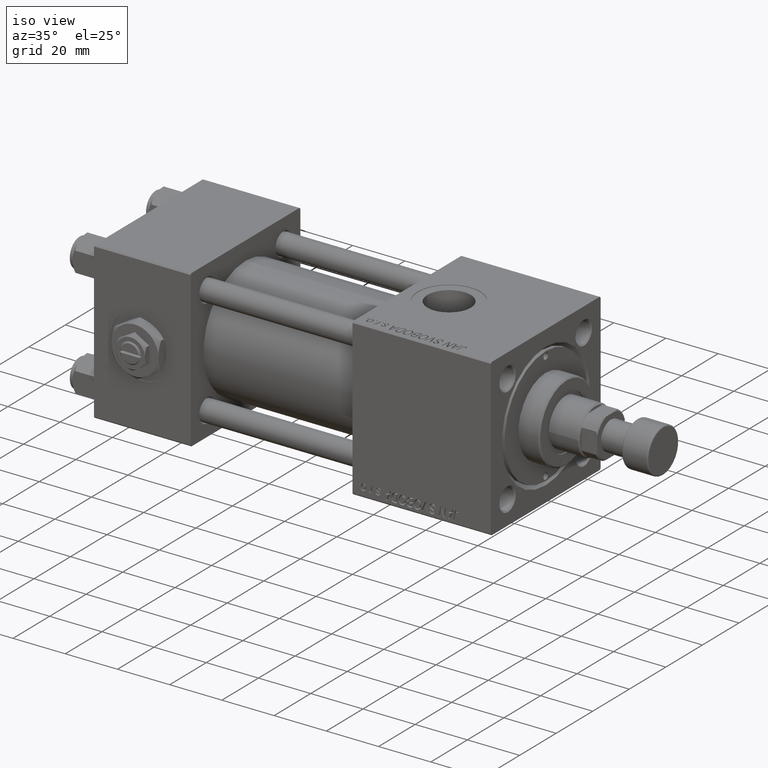
[diagram: clean part render]
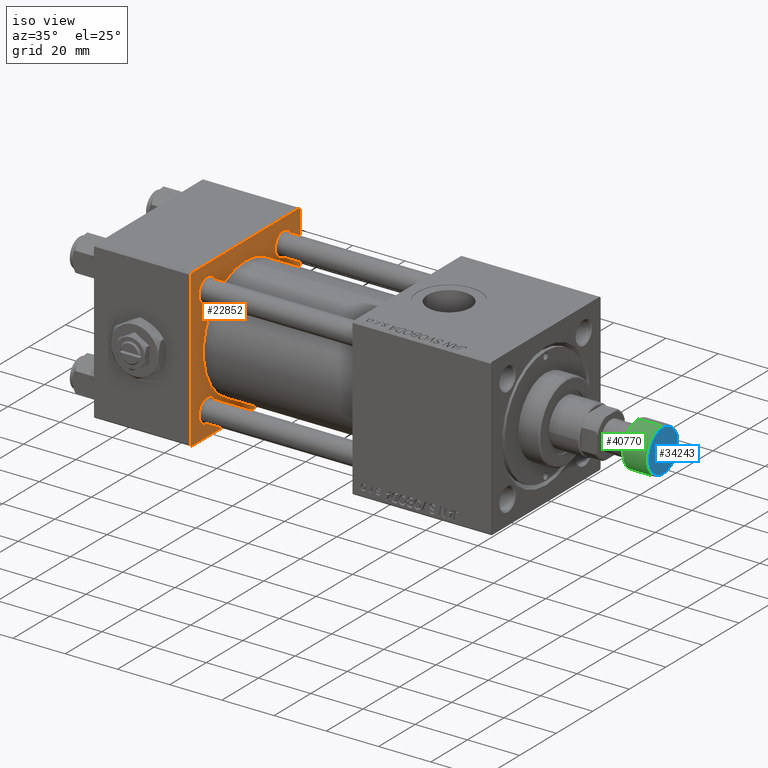
[diagram: same view with three faces highlighted in distinct colors, each labeled with its STEP entity id]
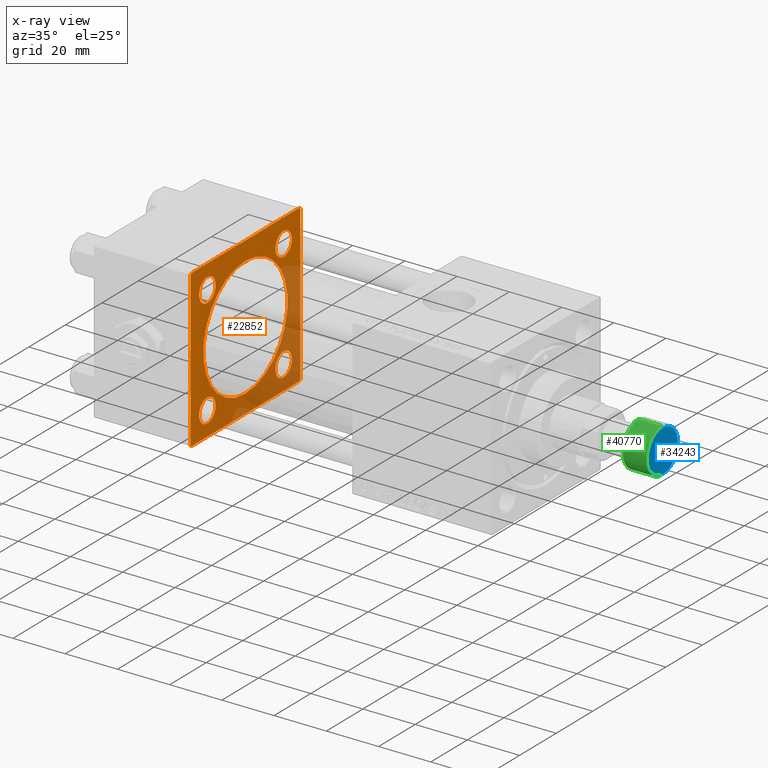
[diagram: x-ray of the same camera — body ghosted, the three highlighted faces saturated]
A machine part, iso view with three faces highlighted in distinct colors.
The next image is the same camera in x-ray (body ghosted, the three faces saturated) — at least one of them is partly hidden behind the body in this view.
Their STEP definitions:

[orange] entity #22852 — the highlighted planar face has unit normal (-1, 0, 0).
#167 = CARTESIAN_POINT ( 'NONE',  ( 37.00000000000000000, 29.99999999999999289, 30.00000000000000000 ) ) ;
#735 = EDGE_CURVE ( 'NONE', #15502, #36636, #19010, .T. ) ;
#1019 = DIRECTION ( 'NONE',  ( 0.000000000000000000, 0.000000000000000000, 1.000000000000000000 ) ) ;
#1096 = EDGE_CURVE ( 'NONE', #36103, #12233, #24928, .T. ) ;
#1233 = CARTESIAN_POINT ( 'NONE',  ( 37.00000000000000000, 20.84999999999999787, -25.35000000000001918 ) ) ;
#2054 = ORIENTED_EDGE ( 'NONE', *, *, #17063, .T. ) ;
#2087 = VECTOR ( 'NONE', #15923, 1000.000000000000000 ) ;
#2222 = DIRECTION ( 'NONE',  ( -0.000000000000000000, 0.000000000000000000, 1.000000000000000000 ) ) ;
#2269 = CARTESIAN_POINT ( 'NONE',  ( 37.00000000000000000, 2.146024240737016609E-16, -23.00000000000000000 ) ) ;
#2558 = DIRECTION ( 'NONE',  ( 0.000000000000000000, 0.000000000000000000, -1.000000000000000000 ) ) ;
#3028 = EDGE_LOOP ( 'NONE', ( #25129, #14555 ) ) ;
#3074 = AXIS2_PLACEMENT_3D ( 'NONE', #17538, #50107, #50901 ) ;
#3397 = ORIENTED_EDGE ( 'NONE', *, *, #24972, .T. ) ;
#3806 = EDGE_CURVE ( 'NONE', #12019, #48899, #44495, .T. ) ;
#4803 = AXIS2_PLACEMENT_3D ( 'NONE', #19771, #52356, #8043 ) ;
#4849 = EDGE_LOOP ( 'NONE', ( #25194, #44845 ) ) ;
#4913 = CARTESIAN_POINT ( 'NONE',  ( 37.00000000000000000, 20.84999999999999787, 20.85000000000000142 ) ) ;
#5310 = VERTEX_POINT ( 'NONE', #42239 ) ;
#5670 = FACE_OUTER_BOUND ( 'NONE', #41220, .T. ) ;
#5794 = AXIS2_PLACEMENT_3D ( 'NONE', #37574, #16243, #1019 ) ;
#5958 = VERTEX_POINT ( 'NONE', #17013 ) ;
#6326 = LINE ( 'NONE', #51436, #47352 ) ;
#6495 = CIRCLE ( 'NONE', #3074, 4.500000000000017764 ) ;
#7336 = CARTESIAN_POINT ( 'NONE',  ( 37.00000000000000000, -2.602085213965210642E-15, 0.000000000000000000 ) ) ;
#7900 = DIRECTION ( 'NONE',  ( -1.000000000000000000, 0.000000000000000000, -0.000000000000000000 ) ) ;
#8043 = DIRECTION ( 'NONE',  ( 0.000000000000000000, 0.000000000000000000, 1.000000000000000000 ) ) ;
#8491 = DIRECTION ( 'NONE',  ( -1.000000000000000000, 0.000000000000000000, -0.000000000000000000 ) ) ;
#8916 = DIRECTION ( 'NONE',  ( 0.000000000000000000, -1.000000000000000000, -1.156482317317871725E-16 ) ) ;
#9175 = EDGE_LOOP ( 'NONE', ( #31603, #23822 ) ) ;
#9531 = ORIENTED_EDGE ( 'NONE', *, *, #17663, .T. ) ;
#9894 = DIRECTION ( 'NONE',  ( 0.000000000000000000, 0.000000000000000000, 1.000000000000000000 ) ) ;
#10818 = CARTESIAN_POINT ( 'NONE',  ( 37.00000000000000000, -30.00000000000000000, 29.99999999999999289 ) ) ;
#10918 = LINE ( 'NONE', #42980, #51577 ) ;
#11149 = VERTEX_POINT ( 'NONE', #23487 ) ;
#11700 = DIRECTION ( 'NONE',  ( 0.000000000000000000, 0.000000000000000000, 1.000000000000000000 ) ) ;
#11952 = EDGE_CURVE ( 'NONE', #36103, #48899, #10918, .T. ) ;
#11972 = CIRCLE ( 'NONE', #40980, 4.500000000000017764 ) ;
#12019 = VERTEX_POINT ( 'NONE', #29528 ) ;
#12105 = CARTESIAN_POINT ( 'NONE',  ( 37.00000000000000000, -29.49999999999998579, 29.99999999999999289 ) ) ;
#12233 = VERTEX_POINT ( 'NONE', #52459 ) ;
#12810 = CARTESIAN_POINT ( 'NONE',  ( 37.00000000000000000, -30.00000000000000000, -29.50000000000001776 ) ) ;
#13586 = ORIENTED_EDGE ( 'NONE', *, *, #1096, .F. ) ;
#13692 = FACE_BOUND ( 'NONE', #29141, .T. ) ;
#13902 = CARTESIAN_POINT ( 'NONE',  ( 37.00000000000000000, -20.84999999999999076, -20.85000000000000497 ) ) ;
#14353 = VERTEX_POINT ( 'NONE', #34346 ) ;
#14482 = DIRECTION ( 'NONE',  ( -1.000000000000000000, 0.000000000000000000, -0.000000000000000000 ) ) ;
#14555 = ORIENTED_EDGE ( 'NONE', *, *, #36466, .T. ) ;
#14608 = DIRECTION ( 'NONE',  ( -0.000000000000000000, -0.7071067811865474617, -0.7071067811865474617 ) ) ;
#14635 = VERTEX_POINT ( 'NONE', #47102 ) ;
#14708 = VERTEX_POINT ( 'NONE', #12810 ) ;
#15067 = CIRCLE ( 'NONE', #4803, 23.00000000000000000 ) ;
#15171 = LINE ( 'NONE', #22908, #36652 ) ;
#15502 = VERTEX_POINT ( 'NONE', #50191 ) ;
#15834 = VECTOR ( 'NONE', #2558, 1000.000000000000000 ) ;
#15923 = DIRECTION ( 'NONE',  ( 0.000000000000000000, 0.000000000000000000, -1.000000000000000000 ) ) ;
#15932 = CARTESIAN_POINT ( 'NONE',  ( 37.00000000000000000, -20.84999999999999076, 20.85000000000000497 ) ) ;
#16243 = DIRECTION ( 'NONE',  ( -1.000000000000000000, 0.000000000000000000, -0.000000000000000000 ) ) ;
#16737 = ORIENTED_EDGE ( 'NONE', *, *, #51978, .T. ) ;
#17013 = CARTESIAN_POINT ( 'NONE',  ( 37.00000000000000000, -20.84999999999999076, 16.34999999999998721 ) ) ;
#17063 = EDGE_CURVE ( 'NONE', #23098, #14708, #51655, .T. ) ;
#17538 = CARTESIAN_POINT ( 'NONE',  ( 37.00000000000000000, 20.84999999999999787, 20.85000000000000142 ) ) ;
#17663 = EDGE_CURVE ( 'NONE', #14353, #11149, #6495, .T. ) ;
#17688 = PLANE ( 'NONE',  #21979 ) ;
#17769 = CARTESIAN_POINT ( 'NONE',  ( 37.00000000000000000, 20.84999999999999787, -20.85000000000000142 ) ) ;
#17954 = FACE_BOUND ( 'NONE', #3028, .T. ) ;
#18040 = VERTEX_POINT ( 'NONE', #2269 ) ;
#19010 = CIRCLE ( 'NONE', #43790, 4.500000000000017764 ) ;
#19349 = EDGE_CURVE ( 'NONE', #18040, #49831, #15067, .T. ) ;
#19573 = CIRCLE ( 'NONE', #45166, 4.500000000000017764 ) ;
#19675 = VECTOR ( 'NONE', #45218, 1000.000000000000114 ) ;
#19771 = CARTESIAN_POINT ( 'NONE',  ( 37.00000000000000000, -2.602085213965210642E-15, 0.000000000000000000 ) ) ;
#20619 = CARTESIAN_POINT ( 'NONE',  ( 37.00000000000000000, -29.50000000000001066, -30.00000000000000711 ) ) ;
#21244 = ORIENTED_EDGE ( 'NONE', *, *, #3806, .F. ) ;
#21762 = DIRECTION ( 'NONE',  ( 0.000000000000000000, 0.000000000000000000, 1.000000000000000000 ) ) ;
#21910 = VERTEX_POINT ( 'NONE', #12105 ) ;
#21946 = CARTESIAN_POINT ( 'NONE',  ( 37.00000000000000000, 0.000000000000000000, 0.000000000000000000 ) ) ;
#21979 = AXIS2_PLACEMENT_3D ( 'NONE', #21946, #14482, #2222 ) ;
#22112 = DIRECTION ( 'NONE',  ( 0.000000000000000000, -1.000000000000000000, -1.156482317317871725E-16 ) ) ;
#22852 = ADVANCED_FACE ( 'NONE', ( #46274, #26232, #17954, #13692, #51317, #5670 ), #17688, .F. ) ;
#22908 = CARTESIAN_POINT ( 'NONE',  ( 37.00000000000000000, 29.99999999999999289, 30.00000000000000000 ) ) ;
#23098 = VERTEX_POINT ( 'NONE', #41407 ) ;
#23487 = CARTESIAN_POINT ( 'NONE',  ( 37.00000000000000000, 20.84999999999999787, 25.35000000000001918 ) ) ;
#23763 = EDGE_CURVE ( 'NONE', #36636, #15502, #51003, .T. ) ;
#23822 = ORIENTED_EDGE ( 'NONE', *, *, #19349, .F. ) ;
#24004 = CARTESIAN_POINT ( 'NONE',  ( 37.00000000000000000, 29.49999999999997868, -30.00000000000000000 ) ) ;
#24170 = CARTESIAN_POINT ( 'NONE',  ( 37.00000000000000000, -20.84999999999999076, -20.85000000000000497 ) ) ;
#24928 = LINE ( 'NONE', #41223, #40376 ) ;
#24972 = EDGE_CURVE ( 'NONE', #12019, #44985, #36789, .T. ) ;
#25129 = ORIENTED_EDGE ( 'NONE', *, *, #41468, .T. ) ;
#25194 = ORIENTED_EDGE ( 'NONE', *, *, #23763, .T. ) ;
#25268 = AXIS2_PLACEMENT_3D ( 'NONE', #15932, #48236, #49014 ) ;
#26232 = FACE_BOUND ( 'NONE', #4849, .T. ) ;
#26959 = EDGE_CURVE ( 'NONE', #14635, #40766, #35797, .T. ) ;
#26996 = CIRCLE ( 'NONE', #25268, 4.500000000000017764 ) ;
#29141 = EDGE_LOOP ( 'NONE', ( #9531, #43982 ) ) ;
#29522 = ORIENTED_EDGE ( 'NONE', *, *, #11952, .T. ) ;
#29528 = CARTESIAN_POINT ( 'NONE',  ( 37.00000000000000000, 29.99999999999999289, 29.50000000000000000 ) ) ;
#30177 = DIRECTION ( 'NONE',  ( -1.000000000000000000, 0.000000000000000000, -0.000000000000000000 ) ) ;
#31460 = VECTOR ( 'NONE', #38048, 1000.000000000000114 ) ;
#31603 = ORIENTED_EDGE ( 'NONE', *, *, #35684, .F. ) ;
#32134 = EDGE_CURVE ( 'NONE', #11149, #14353, #11972, .T. ) ;
#32512 = CARTESIAN_POINT ( 'NONE',  ( 37.00000000000000000, 20.84999999999999787, -20.85000000000000142 ) ) ;
#33243 = AXIS2_PLACEMENT_3D ( 'NONE', #13902, #30177, #9894 ) ;
#33482 = DIRECTION ( 'NONE',  ( -1.000000000000000000, 0.000000000000000000, -0.000000000000000000 ) ) ;
#33678 = ORIENTED_EDGE ( 'NONE', *, *, #47821, .T. ) ;
#33978 = LINE ( 'NONE', #20619, #19675 ) ;
#34346 = CARTESIAN_POINT ( 'NONE',  ( 37.00000000000000000, 20.84999999999999787, 16.34999999999998366 ) ) ;
#34419 = DIRECTION ( 'NONE',  ( -0.000000000000000000, 0.7071067811865574537, 0.7071067811865376918 ) ) ;
#35274 = EDGE_CURVE ( 'NONE', #21910, #23098, #6326, .T. ) ;
#35684 = EDGE_CURVE ( 'NONE', #49831, #18040, #52521, .T. ) ;
#35797 = CIRCLE ( 'NONE', #33243, 4.500000000000017764 ) ;
#36103 = VERTEX_POINT ( 'NONE', #24004 ) ;
#36139 = DIRECTION ( 'NONE',  ( 0.000000000000000000, 0.000000000000000000, 1.000000000000000000 ) ) ;
#36466 = EDGE_CURVE ( 'NONE', #5310, #5958, #26996, .T. ) ;
#36636 = VERTEX_POINT ( 'NONE', #1233 ) ;
#36652 = VECTOR ( 'NONE', #22112, 1000.000000000000000 ) ;
#36789 = LINE ( 'NONE', #46067, #31460 ) ;
#37348 = AXIS2_PLACEMENT_3D ( 'NONE', #32512, #8491, #11700 ) ;
#37574 = CARTESIAN_POINT ( 'NONE',  ( 37.00000000000000000, -20.84999999999999076, 20.85000000000000497 ) ) ;
#37748 = DIRECTION ( 'NONE',  ( 0.000000000000000000, 0.000000000000000000, 1.000000000000000000 ) ) ;
#38048 = DIRECTION ( 'NONE',  ( 0.000000000000000000, -0.7071067811865474617, 0.7071067811865474617 ) ) ;
#40376 = VECTOR ( 'NONE', #8916, 1000.000000000000000 ) ;
#40726 = DIRECTION ( 'NONE',  ( 0.000000000000000000, 0.000000000000000000, 1.000000000000000000 ) ) ;
#40766 = VERTEX_POINT ( 'NONE', #43358 ) ;
#40980 = AXIS2_PLACEMENT_3D ( 'NONE', #4913, #33482, #37748 ) ;
#41038 = EDGE_LOOP ( 'NONE', ( #42073, #41230 ) ) ;
#41220 = EDGE_LOOP ( 'NONE', ( #13586, #29522, #21244, #3397, #33678, #41443, #2054, #16737 ) ) ;
#41223 = CARTESIAN_POINT ( 'NONE',  ( 37.00000000000000000, 29.99999999999999289, -30.00000000000000000 ) ) ;
#41230 = ORIENTED_EDGE ( 'NONE', *, *, #48132, .T. ) ;
#41407 = CARTESIAN_POINT ( 'NONE',  ( 37.00000000000000000, -30.00000000000000000, 29.49999999999999289 ) ) ;
#41443 = ORIENTED_EDGE ( 'NONE', *, *, #35274, .T. ) ;
#41468 = EDGE_CURVE ( 'NONE', #5958, #5310, #51840, .T. ) ;
#42073 = ORIENTED_EDGE ( 'NONE', *, *, #26959, .T. ) ;
#42239 = CARTESIAN_POINT ( 'NONE',  ( 37.00000000000000000, -20.84999999999999076, 25.35000000000002274 ) ) ;
#42654 = CARTESIAN_POINT ( 'NONE',  ( 37.00000000000000000, 29.99999999999999289, -29.50000000000000000 ) ) ;
#42980 = CARTESIAN_POINT ( 'NONE',  ( 37.00000000000000000, 29.99999999999999289, -29.50000000000000000 ) ) ;
#43358 = CARTESIAN_POINT ( 'NONE',  ( 37.00000000000000000, -20.84999999999999076, -16.34999999999998721 ) ) ;
#43790 = AXIS2_PLACEMENT_3D ( 'NONE', #17769, #49556, #21762 ) ;
#43982 = ORIENTED_EDGE ( 'NONE', *, *, #32134, .T. ) ;
#44495 = LINE ( 'NONE', #167, #2087 ) ;
#44845 = ORIENTED_EDGE ( 'NONE', *, *, #735, .T. ) ;
#44985 = VERTEX_POINT ( 'NONE', #45163 ) ;
#45163 = CARTESIAN_POINT ( 'NONE',  ( 37.00000000000000000, 29.49999999999999289, 30.00000000000000000 ) ) ;
#45166 = AXIS2_PLACEMENT_3D ( 'NONE', #24170, #7900, #40726 ) ;
#45218 = DIRECTION ( 'NONE',  ( 0.000000000000000000, 0.7071067811865474617, -0.7071067811865474617 ) ) ;
#46067 = CARTESIAN_POINT ( 'NONE',  ( 37.00000000000000000, 29.49999999999999289, 30.00000000000000000 ) ) ;
#46274 = FACE_BOUND ( 'NONE', #41038, .T. ) ;
#47102 = CARTESIAN_POINT ( 'NONE',  ( 37.00000000000000000, -20.84999999999999076, -25.35000000000002274 ) ) ;
#47352 = VECTOR ( 'NONE', #14608, 1000.000000000000114 ) ;
#47821 = EDGE_CURVE ( 'NONE', #44985, #21910, #15171, .T. ) ;
#48132 = EDGE_CURVE ( 'NONE', #40766, #14635, #19573, .T. ) ;
#48167 = DIRECTION ( 'NONE',  ( 1.000000000000000000, -0.000000000000000000, 0.000000000000000000 ) ) ;
#48236 = DIRECTION ( 'NONE',  ( -1.000000000000000000, 0.000000000000000000, -0.000000000000000000 ) ) ;
#48899 = VERTEX_POINT ( 'NONE', #42654 ) ;
#49014 = DIRECTION ( 'NONE',  ( 0.000000000000000000, 0.000000000000000000, 1.000000000000000000 ) ) ;
#49556 = DIRECTION ( 'NONE',  ( -1.000000000000000000, 0.000000000000000000, -0.000000000000000000 ) ) ;
#49609 = CARTESIAN_POINT ( 'NONE',  ( 37.00000000000000000, -2.602085213965210642E-15, 23.00000000000000000 ) ) ;
#49831 = VERTEX_POINT ( 'NONE', #49609 ) ;
#50107 = DIRECTION ( 'NONE',  ( -1.000000000000000000, 0.000000000000000000, -0.000000000000000000 ) ) ;
#50191 = CARTESIAN_POINT ( 'NONE',  ( 37.00000000000000000, 20.84999999999999787, -16.34999999999998366 ) ) ;
#50800 = AXIS2_PLACEMENT_3D ( 'NONE', #7336, #48167, #36139 ) ;
#50901 = DIRECTION ( 'NONE',  ( 0.000000000000000000, 0.000000000000000000, 1.000000000000000000 ) ) ;
#51003 = CIRCLE ( 'NONE', #37348, 4.500000000000017764 ) ;
#51317 = FACE_BOUND ( 'NONE', #9175, .T. ) ;
#51436 = CARTESIAN_POINT ( 'NONE',  ( 37.00000000000000000, -30.00000000000000000, 29.49999999999999289 ) ) ;
#51577 = VECTOR ( 'NONE', #34419, 999.9999999999998863 ) ;
#51655 = LINE ( 'NONE', #10818, #15834 ) ;
#51840 = CIRCLE ( 'NONE', #5794, 4.500000000000017764 ) ;
#51978 = EDGE_CURVE ( 'NONE', #14708, #12233, #33978, .T. ) ;
#52356 = DIRECTION ( 'NONE',  ( 1.000000000000000000, -0.000000000000000000, 0.000000000000000000 ) ) ;
#52459 = CARTESIAN_POINT ( 'NONE',  ( 37.00000000000000000, -29.50000000000000000, -30.00000000000000711 ) ) ;
#52521 = CIRCLE ( 'NONE', #50800, 23.00000000000000000 ) ;

[blue] entity #34243 — the highlighted planar face has unit normal (1, 0, 0).
#952 = DIRECTION ( 'NONE',  ( 1.000000000000000000, 0.000000000000000000, 0.000000000000000000 ) ) ;
#7114 = PLANE ( 'NONE',  #24277 ) ;
#7360 = ORIENTED_EDGE ( 'NONE', *, *, #8202, .T. ) ;
#8202 = EDGE_CURVE ( 'NONE', #49169, #21682, #13076, .T. ) ;
#11374 = CARTESIAN_POINT ( 'NONE',  ( 0.000000000000000000, 0.000000000000000000, 0.000000000000000000 ) ) ;
#13076 = CIRCLE ( 'NONE', #15654, 8.000000000000000000 ) ;
#15654 = AXIS2_PLACEMENT_3D ( 'NONE', #30281, #37766, #952 ) ;
#16546 = EDGE_LOOP ( 'NONE', ( #28290, #7360 ) ) ;
#21682 = VERTEX_POINT ( 'NONE', #38573 ) ;
#23383 = DIRECTION ( 'NONE',  ( 1.000000000000000000, 0.000000000000000000, -0.000000000000000000 ) ) ;
#24277 = AXIS2_PLACEMENT_3D ( 'NONE', #11374, #27133, #23383 ) ;
#24450 = DIRECTION ( 'NONE',  ( 0.000000000000000000, 0.000000000000000000, 1.000000000000000000 ) ) ;
#26457 = AXIS2_PLACEMENT_3D ( 'NONE', #51699, #24450, #43978 ) ;
#27133 = DIRECTION ( 'NONE',  ( 0.000000000000000000, 0.000000000000000000, 1.000000000000000000 ) ) ;
#28290 = ORIENTED_EDGE ( 'NONE', *, *, #31712, .T. ) ;
#30281 = CARTESIAN_POINT ( 'NONE',  ( 0.000000000000000000, 0.000000000000000000, 0.000000000000000000 ) ) ;
#31712 = EDGE_CURVE ( 'NONE', #21682, #49169, #41823, .T. ) ;
#32984 = CARTESIAN_POINT ( 'NONE',  ( -8.000000000000000000, 1.010333609296566550E-15, 0.000000000000000000 ) ) ;
#34243 = ADVANCED_FACE ( 'NONE', ( #51692 ), #7114, .T. ) ;
#37766 = DIRECTION ( 'NONE',  ( 0.000000000000000000, 0.000000000000000000, 1.000000000000000000 ) ) ;
#38573 = CARTESIAN_POINT ( 'NONE',  ( 8.000000000000000000, 0.000000000000000000, 0.000000000000000000 ) ) ;
#41823 = CIRCLE ( 'NONE', #26457, 8.000000000000000000 ) ;
#43978 = DIRECTION ( 'NONE',  ( 1.000000000000000000, 0.000000000000000000, 0.000000000000000000 ) ) ;
#49169 = VERTEX_POINT ( 'NONE', #32984 ) ;
#51692 = FACE_OUTER_BOUND ( 'NONE', #16546, .T. ) ;
#51699 = CARTESIAN_POINT ( 'NONE',  ( 0.000000000000000000, 0.000000000000000000, 0.000000000000000000 ) ) ;

[green] entity #40770 — the highlighted cylindrical surface (edge-blend (fillet) strip) has radius 8.5 mm, axis along (1, 0, 0).
#196 = EDGE_CURVE ( 'NONE', #7950, #43891, #32351, .T. ) ;
#3395 = LINE ( 'NONE', #8182, #52457 ) ;
#6601 = AXIS2_PLACEMENT_3D ( 'NONE', #15221, #12519, #41616 ) ;
#6665 = CARTESIAN_POINT ( 'NONE',  ( 8.500000000000000000, 0.000000000000000000, -0.5000000000000004441 ) ) ;
#7950 = VERTEX_POINT ( 'NONE', #9337 ) ;
#8182 = CARTESIAN_POINT ( 'NONE',  ( 8.500000000000000000, 0.000000000000000000, -10.00000000000000000 ) ) ;
#9337 = CARTESIAN_POINT ( 'NONE',  ( -8.500000000000000000, 1.040949779275250140E-15, -9.500000000000000000 ) ) ;
#9641 = EDGE_LOOP ( 'NONE', ( #44719, #50852, #11693, #49758 ) ) ;
#11693 = ORIENTED_EDGE ( 'NONE', *, *, #16103, .T. ) ;
#12114 = CARTESIAN_POINT ( 'NONE',  ( -8.500000000000000000, 1.040949779275250140E-15, -0.5000000000000004441 ) ) ;
#12519 = DIRECTION ( 'NONE',  ( 0.000000000000000000, 0.000000000000000000, 1.000000000000000000 ) ) ;
#12807 = CARTESIAN_POINT ( 'NONE',  ( 0.000000000000000000, 0.000000000000000000, -0.5000000000000004441 ) ) ;
#15037 = CARTESIAN_POINT ( 'NONE',  ( 0.000000000000000000, 0.000000000000000000, -10.00000000000000000 ) ) ;
#15221 = CARTESIAN_POINT ( 'NONE',  ( 0.000000000000000000, 0.000000000000000000, -9.500000000000000000 ) ) ;
#16103 = EDGE_CURVE ( 'NONE', #36420, #19593, #3395, .T. ) ;
#16473 = VECTOR ( 'NONE', #40110, 1000.000000000000000 ) ;
#19548 = FACE_OUTER_BOUND ( 'NONE', #9641, .T. ) ;
#19593 = VERTEX_POINT ( 'NONE', #6665 ) ;
#19987 = CIRCLE ( 'NONE', #37080, 8.500000000000000000 ) ;
#20429 = DIRECTION ( 'NONE',  ( 0.000000000000000000, 0.000000000000000000, 1.000000000000000000 ) ) ;
#21048 = DIRECTION ( 'NONE',  ( 1.000000000000000000, 0.000000000000000000, 0.000000000000000000 ) ) ;
#21974 = AXIS2_PLACEMENT_3D ( 'NONE', #15037, #51875, #47348 ) ;
#29083 = DIRECTION ( 'NONE',  ( -0.000000000000000000, -0.000000000000000000, -1.000000000000000000 ) ) ;
#32351 = LINE ( 'NONE', #44387, #16473 ) ;
#33701 = EDGE_CURVE ( 'NONE', #19593, #43891, #19987, .T. ) ;
#35425 = CARTESIAN_POINT ( 'NONE',  ( 8.500000000000000000, 0.000000000000000000, -9.500000000000000000 ) ) ;
#36420 = VERTEX_POINT ( 'NONE', #35425 ) ;
#37080 = AXIS2_PLACEMENT_3D ( 'NONE', #12807, #29083, #21048 ) ;
#39068 = CYLINDRICAL_SURFACE ( 'NONE', #21974, 8.500000000000000000 ) ;
#39078 = EDGE_CURVE ( 'NONE', #7950, #36420, #45818, .T. ) ;
#40110 = DIRECTION ( 'NONE',  ( 0.000000000000000000, 0.000000000000000000, 1.000000000000000000 ) ) ;
#40770 = ADVANCED_FACE ( 'NONE', ( #19548 ), #39068, .T. ) ;
#41616 = DIRECTION ( 'NONE',  ( 1.000000000000000000, 0.000000000000000000, 0.000000000000000000 ) ) ;
#43891 = VERTEX_POINT ( 'NONE', #12114 ) ;
#44387 = CARTESIAN_POINT ( 'NONE',  ( -8.500000000000000000, 1.040949779275250140E-15, -10.00000000000000000 ) ) ;
#44719 = ORIENTED_EDGE ( 'NONE', *, *, #196, .F. ) ;
#45818 = CIRCLE ( 'NONE', #6601, 8.500000000000000000 ) ;
#47348 = DIRECTION ( 'NONE',  ( 1.000000000000000000, 0.000000000000000000, 0.000000000000000000 ) ) ;
#49758 = ORIENTED_EDGE ( 'NONE', *, *, #33701, .T. ) ;
#50852 = ORIENTED_EDGE ( 'NONE', *, *, #39078, .T. ) ;
#51875 = DIRECTION ( 'NONE',  ( 0.000000000000000000, 0.000000000000000000, 1.000000000000000000 ) ) ;
#52457 = VECTOR ( 'NONE', #20429, 1000.000000000000000 ) ;